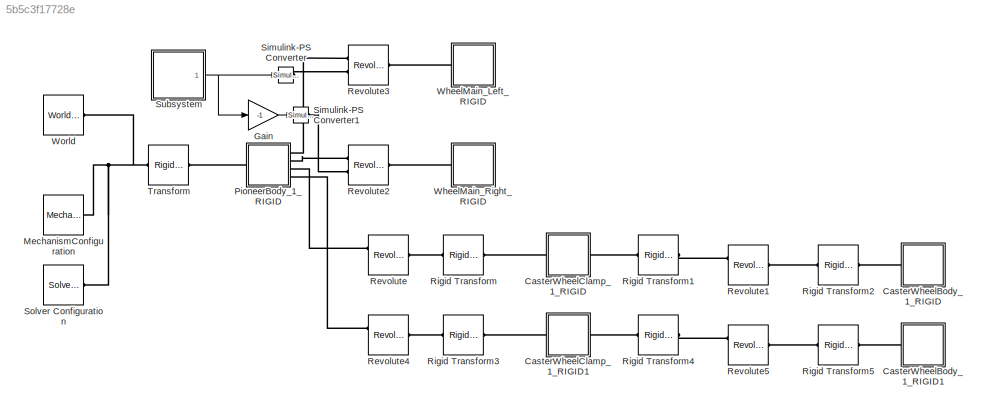
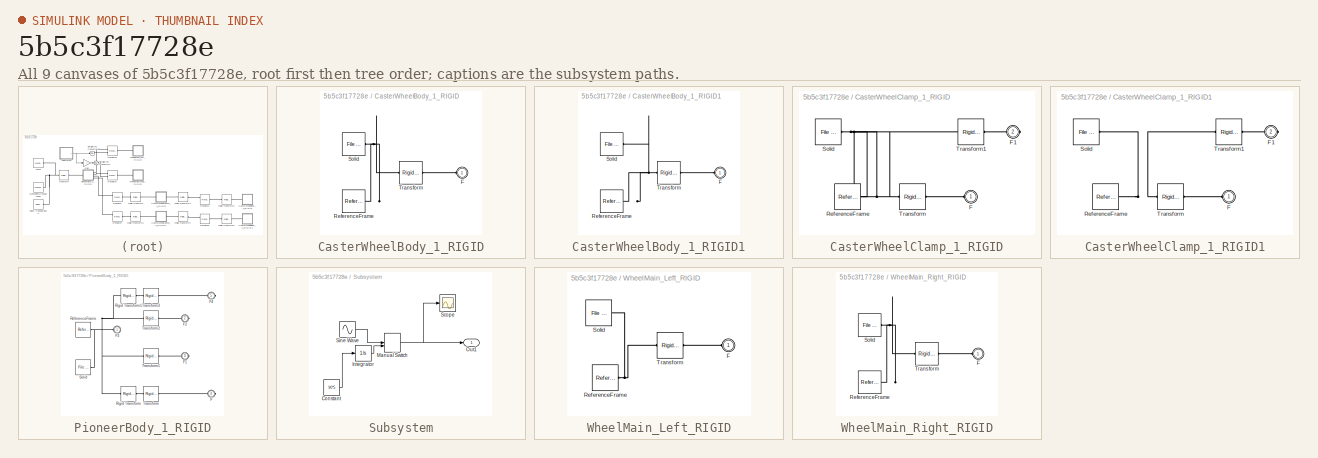
[diagram: thumbnail index - all 9 canvases of the model, root first then tree order]
MODEL slx_5b5c3f17728e
KIND model
CONFIG AbsTol = auto
CONFIG EnableMultiTasking = on
CONFIG FixedStep = auto
CONFIG MaxStep = auto
CONFIG MinStep = auto
CONFIG RelTol = 1e-3
CONFIG SampleTimeConstraint = Unconstrained
CONFIG Solver = ode45
CONFIG SolverName = ode45
CONFIG StartTime = 0.0
CONFIG StopTime = inf
BLOCK [SubSystem] CasterWheelBody_1_RIGID
  Ports = [0, 0, 0, 0, 0, 1]
  RequestExecContextInheritance = off
BLOCK [PMIOPort] CasterWheelBody_1_RIGID/F
  Side = Left
BLOCK [Reference] CasterWheelBody_1_RIGID/ReferenceFrame  REF=sm_lib/Frames and
Transforms/Reference
Frame
  Ports = [0, 0, 0, 0, 0, 0, 1]
  SourceBlock = sm_lib/Frames and\nTransforms/Reference\nFrame
  SourceProductBaseCode = MS
  SourceType = Reference\nFrame
BLOCK [Reference] CasterWheelBody_1_RIGID/Solid  REF=sm_lib/Body Elements/File Solid
  Ports = [0, 0, 0, 0, 0, 0, 1]
  SourceBlock = sm_lib/Body Elements/File Solid
  SourceProductBaseCode = MS
  SourceType = File Solid
BLOCK [Reference] CasterWheelBody_1_RIGID/Transform  REF=sm_lib/Frames and
Transforms/Rigid
Transform
  Ports = [0, 0, 0, 0, 0, 1, 1]
  SourceBlock = sm_lib/Frames and\nTransforms/Rigid\nTransform
  SourceProductBaseCode = MS
  SourceType = Rigid\nTransform
BLOCK [SubSystem] CasterWheelBody_1_RIGID1
  Ports = [0, 0, 0, 0, 0, 1]
  RequestExecContextInheritance = off
BLOCK [PMIOPort] CasterWheelBody_1_RIGID1/F
  Side = Left
BLOCK [Reference] CasterWheelBody_1_RIGID1/ReferenceFrame  REF=sm_lib/Frames and
Transforms/Reference
Frame
  Ports = [0, 0, 0, 0, 0, 0, 1]
  SourceBlock = sm_lib/Frames and\nTransforms/Reference\nFrame
  SourceProductBaseCode = MS
  SourceType = Reference\nFrame
BLOCK [Reference] CasterWheelBody_1_RIGID1/Solid  REF=sm_lib/Body Elements/File Solid
  Ports = [0, 0, 0, 0, 0, 0, 1]
  SourceBlock = sm_lib/Body Elements/File Solid
  SourceProductBaseCode = MS
  SourceType = File Solid
BLOCK [Reference] CasterWheelBody_1_RIGID1/Transform  REF=sm_lib/Frames and
Transforms/Rigid
Transform
  Ports = [0, 0, 0, 0, 0, 1, 1]
  SourceBlock = sm_lib/Frames and\nTransforms/Rigid\nTransform
  SourceProductBaseCode = MS
  SourceType = Rigid\nTransform
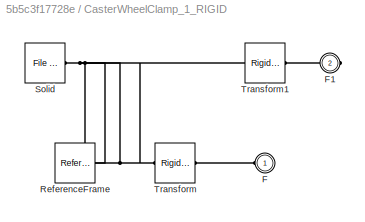
BLOCK [SubSystem] CasterWheelClamp_1_RIGID
  Ports = [0, 0, 0, 0, 0, 1, 1]
  RequestExecContextInheritance = off
BLOCK [PMIOPort] CasterWheelClamp_1_RIGID/F
  Side = Left
BLOCK [PMIOPort] CasterWheelClamp_1_RIGID/F1
  Port = 2
  Side = Right
BLOCK [Reference] CasterWheelClamp_1_RIGID/ReferenceFrame  REF=sm_lib/Frames and
Transforms/Reference
Frame
  Ports = [0, 0, 0, 0, 0, 0, 1]
  SourceBlock = sm_lib/Frames and\nTransforms/Reference\nFrame
  SourceProductBaseCode = MS
  SourceType = Reference\nFrame
BLOCK [Reference] CasterWheelClamp_1_RIGID/Solid  REF=sm_lib/Body Elements/File Solid
  Ports = [0, 0, 0, 0, 0, 0, 1]
  SourceBlock = sm_lib/Body Elements/File Solid
  SourceProductBaseCode = MS
  SourceType = File Solid
BLOCK [Reference] CasterWheelClamp_1_RIGID/Transform  REF=sm_lib/Frames and
Transforms/Rigid
Transform
  Ports = [0, 0, 0, 0, 0, 1, 1]
  SourceBlock = sm_lib/Frames and\nTransforms/Rigid\nTransform
  SourceProductBaseCode = MS
  SourceType = Rigid\nTransform
BLOCK [Reference] CasterWheelClamp_1_RIGID/Transform1  REF=sm_lib/Frames and
Transforms/Rigid
Transform
  Ports = [0, 0, 0, 0, 0, 1, 1]
  SourceBlock = sm_lib/Frames and\nTransforms/Rigid\nTransform
  SourceProductBaseCode = MS
  SourceType = Rigid\nTransform
BLOCK [SubSystem] CasterWheelClamp_1_RIGID1
  Ports = [0, 0, 0, 0, 0, 1, 1]
  RequestExecContextInheritance = off
BLOCK [PMIOPort] CasterWheelClamp_1_RIGID1/F
  Side = Left
BLOCK [PMIOPort] CasterWheelClamp_1_RIGID1/F1
  Port = 2
  Side = Right
BLOCK [Reference] CasterWheelClamp_1_RIGID1/ReferenceFrame  REF=sm_lib/Frames and
Transforms/Reference
Frame
  Ports = [0, 0, 0, 0, 0, 0, 1]
  SourceBlock = sm_lib/Frames and\nTransforms/Reference\nFrame
  SourceProductBaseCode = MS
  SourceType = Reference\nFrame
BLOCK [Reference] CasterWheelClamp_1_RIGID1/Solid  REF=sm_lib/Body Elements/File Solid
  Ports = [0, 0, 0, 0, 0, 0, 1]
  SourceBlock = sm_lib/Body Elements/File Solid
  SourceProductBaseCode = MS
  SourceType = File Solid
BLOCK [Reference] CasterWheelClamp_1_RIGID1/Transform  REF=sm_lib/Frames and
Transforms/Rigid
Transform
  Ports = [0, 0, 0, 0, 0, 1, 1]
  SourceBlock = sm_lib/Frames and\nTransforms/Rigid\nTransform
  SourceProductBaseCode = MS
  SourceType = Rigid\nTransform
BLOCK [Reference] CasterWheelClamp_1_RIGID1/Transform1  REF=sm_lib/Frames and
Transforms/Rigid
Transform
  Ports = [0, 0, 0, 0, 0, 1, 1]
  SourceBlock = sm_lib/Frames and\nTransforms/Rigid\nTransform
  SourceProductBaseCode = MS
  SourceType = Rigid\nTransform
BLOCK [Gain] Gain
  Gain = -1
BLOCK [Reference] MechanismConfiguration  REF=sm_lib/Utilities/Mechanism
Configuration
  Ports = [0, 0, 0, 0, 0, 0, 1]
  SourceBlock = sm_lib/Utilities/Mechanism\nConfiguration
  SourceProductBaseCode = MS
  SourceType = Mechanism\nConfiguration
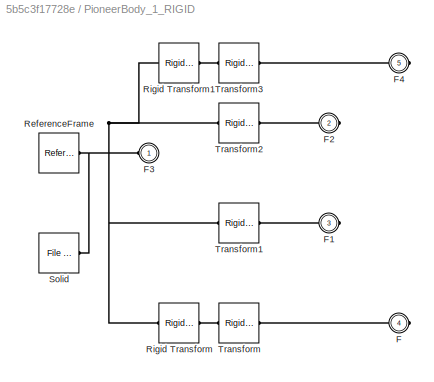
BLOCK [SubSystem] PioneerBody_1_RIGID
  Ports = [0, 0, 0, 0, 0, 1, 4]
  RequestExecContextInheritance = off
BLOCK [PMIOPort] PioneerBody_1_RIGID/F
  Port = 4
  Side = Right
BLOCK [PMIOPort] PioneerBody_1_RIGID/F1
  Port = 3
  Side = Right
BLOCK [PMIOPort] PioneerBody_1_RIGID/F2
  Port = 2
  Side = Right
BLOCK [PMIOPort] PioneerBody_1_RIGID/F3
  Side = Left
BLOCK [PMIOPort] PioneerBody_1_RIGID/F4
  Port = 5
  Side = Right
BLOCK [Reference] PioneerBody_1_RIGID/ReferenceFrame  REF=sm_lib/Frames and
Transforms/Reference
Frame
  Ports = [0, 0, 0, 0, 0, 0, 1]
  SourceBlock = sm_lib/Frames and\nTransforms/Reference\nFrame
  SourceProductBaseCode = MS
  SourceType = Reference\nFrame
BLOCK [Reference] PioneerBody_1_RIGID/Rigid Transform  REF=sm_lib/Frames and
Transforms/Rigid
Transform
  Ports = [0, 0, 0, 0, 0, 1, 1]
  SourceBlock = sm_lib/Frames and\nTransforms/Rigid\nTransform
  SourceProductBaseCode = MS
  SourceType = Rigid\nTransform
BLOCK [Reference] PioneerBody_1_RIGID/Rigid Transform1  REF=sm_lib/Frames and
Transforms/Rigid
Transform
  Ports = [0, 0, 0, 0, 0, 1, 1]
  SourceBlock = sm_lib/Frames and\nTransforms/Rigid\nTransform
  SourceProductBaseCode = MS
  SourceType = Rigid\nTransform
BLOCK [Reference] PioneerBody_1_RIGID/Solid  REF=sm_lib/Body Elements/File Solid
  Ports = [0, 0, 0, 0, 0, 0, 1]
  SourceBlock = sm_lib/Body Elements/File Solid
  SourceProductBaseCode = MS
  SourceType = File Solid
BLOCK [Reference] PioneerBody_1_RIGID/Transform  REF=sm_lib/Frames and
Transforms/Rigid
Transform
  Ports = [0, 0, 0, 0, 0, 1, 1]
  SourceBlock = sm_lib/Frames and\nTransforms/Rigid\nTransform
  SourceProductBaseCode = MS
  SourceType = Rigid\nTransform
BLOCK [Reference] PioneerBody_1_RIGID/Transform1  REF=sm_lib/Frames and
Transforms/Rigid
Transform
  Ports = [0, 0, 0, 0, 0, 1, 1]
  SourceBlock = sm_lib/Frames and\nTransforms/Rigid\nTransform
  SourceProductBaseCode = MS
  SourceType = Rigid\nTransform
BLOCK [Reference] PioneerBody_1_RIGID/Transform2  REF=sm_lib/Frames and
Transforms/Rigid
Transform
  Ports = [0, 0, 0, 0, 0, 1, 1]
  SourceBlock = sm_lib/Frames and\nTransforms/Rigid\nTransform
  SourceProductBaseCode = MS
  SourceType = Rigid\nTransform
BLOCK [Reference] PioneerBody_1_RIGID/Transform3  REF=sm_lib/Frames and
Transforms/Rigid
Transform
  Ports = [0, 0, 0, 0, 0, 1, 1]
  SourceBlock = sm_lib/Frames and\nTransforms/Rigid\nTransform
  SourceProductBaseCode = MS
  SourceType = Rigid\nTransform
BLOCK [Reference] Revolute  REF=sm_lib/Joints/Revolute Joint
  Ports = [0, 0, 0, 0, 0, 2, 1]
  SourceBlock = sm_lib/Joints/Revolute Joint
  SourceProductBaseCode = MS
  SourceType = Revolute Joint
BLOCK [Reference] Revolute1  REF=sm_lib/Joints/Revolute Joint
  Ports = [0, 0, 0, 0, 0, 2, 1]
  SourceBlock = sm_lib/Joints/Revolute Joint
  SourceProductBaseCode = MS
  SourceType = Revolute Joint
BLOCK [Reference] Revolute2  REF=sm_lib/Joints/Revolute Joint
  Ports = [0, 0, 0, 0, 0, 2, 1]
  SourceBlock = sm_lib/Joints/Revolute Joint
  SourceProductBaseCode = MS
  SourceType = Revolute Joint
BLOCK [Reference] Revolute3  REF=sm_lib/Joints/Revolute Joint
  Ports = [0, 0, 0, 0, 0, 2, 1]
  SourceBlock = sm_lib/Joints/Revolute Joint
  SourceProductBaseCode = MS
  SourceType = Revolute Joint
BLOCK [Reference] Revolute4  REF=sm_lib/Joints/Revolute Joint
  Ports = [0, 0, 0, 0, 0, 2, 1]
  SourceBlock = sm_lib/Joints/Revolute Joint
  SourceProductBaseCode = MS
  SourceType = Revolute Joint
BLOCK [Reference] Revolute5  REF=sm_lib/Joints/Revolute Joint
  Ports = [0, 0, 0, 0, 0, 2, 1]
  SourceBlock = sm_lib/Joints/Revolute Joint
  SourceProductBaseCode = MS
  SourceType = Revolute Joint
BLOCK [Reference] Rigid Transform  REF=sm_lib/Frames and
Transforms/Rigid
Transform
  Ports = [0, 0, 0, 0, 0, 1, 1]
  SourceBlock = sm_lib/Frames and\nTransforms/Rigid\nTransform
  SourceProductBaseCode = MS
  SourceType = Rigid\nTransform
BLOCK [Reference] Rigid Transform1  REF=sm_lib/Frames and
Transforms/Rigid
Transform
  Ports = [0, 0, 0, 0, 0, 1, 1]
  SourceBlock = sm_lib/Frames and\nTransforms/Rigid\nTransform
  SourceProductBaseCode = MS
  SourceType = Rigid\nTransform
BLOCK [Reference] Rigid Transform2  REF=sm_lib/Frames and
Transforms/Rigid
Transform
  Ports = [0, 0, 0, 0, 0, 1, 1]
  SourceBlock = sm_lib/Frames and\nTransforms/Rigid\nTransform
  SourceProductBaseCode = MS
  SourceType = Rigid\nTransform
BLOCK [Reference] Rigid Transform3  REF=sm_lib/Frames and
Transforms/Rigid
Transform
  Ports = [0, 0, 0, 0, 0, 1, 1]
  SourceBlock = sm_lib/Frames and\nTransforms/Rigid\nTransform
  SourceProductBaseCode = MS
  SourceType = Rigid\nTransform
BLOCK [Reference] Rigid Transform4  REF=sm_lib/Frames and
Transforms/Rigid
Transform
  Ports = [0, 0, 0, 0, 0, 1, 1]
  SourceBlock = sm_lib/Frames and\nTransforms/Rigid\nTransform
  SourceProductBaseCode = MS
  SourceType = Rigid\nTransform
BLOCK [Reference] Rigid Transform5  REF=sm_lib/Frames and
Transforms/Rigid
Transform
  Ports = [0, 0, 0, 0, 0, 1, 1]
  SourceBlock = sm_lib/Frames and\nTransforms/Rigid\nTransform
  SourceProductBaseCode = MS
  SourceType = Rigid\nTransform
BLOCK [Reference] Simulink-PS Converter  REF=nesl_utility/Simulink-PS
Converter
  Ports = [1, 0, 0, 0, 0, 0, 1]
  SourceBlock = nesl_utility/Simulink-PS\nConverter
  SourceProductBaseCode = SS
  SourceType = Simulink-PS\nConverter
BLOCK [Reference] Simulink-PS Converter1  REF=nesl_utility/Simulink-PS
Converter
  Ports = [1, 0, 0, 0, 0, 0, 1]
  SourceBlock = nesl_utility/Simulink-PS\nConverter
  SourceProductBaseCode = SS
  SourceType = Simulink-PS\nConverter
BLOCK [Reference] Solver Configuration  REF=nesl_utility/Solver
Configuration
  Ports = [0, 0, 0, 0, 0, 0, 1]
  SourceBlock = nesl_utility/Solver\nConfiguration
  SourceProductBaseCode = SS
  SourceType = Solver\nConfiguration
BLOCK [SubSystem] Subsystem
  Ports = [0, 1]
  RequestExecContextInheritance = off
BLOCK [Constant] Subsystem/Constant
  Value = 90*5
BLOCK [Integrator] Subsystem/Integrator
  Ports = [1, 1]
BLOCK [ManualSwitch] Subsystem/Manual Switch
BLOCK [Outport] Subsystem/Out1
BLOCK [Scope] Subsystem/Scope
  Floating = off
  NumInputPorts = 1
  Ports = [1]
  ScopeSpecificationString = Simulink.scopes.TimeScopeBlockCfg('CurrentConfiguration', extmgr.ConfigurationSet(extmgr.Configuration('Core','General UI',true),extmgr.Configuration('Core','Source UI',true),extmgr.Configuration('Sources','WiredSimulink',true),extmgr.Configuration('Visuals','Time Domain',true,'SerializedDisplays',{struct('MinYLimReal','-448.51807','MaxYLimReal','436.66371','YLabelReal','','MinYLimMag',' 0.00000',...<+1459ch>
BLOCK [Sin] Subsystem/Sine Wave
  Amplitude = 360
  Ports = [0, 1]
  SampleTime = 0
BLOCK [Reference] Transform  REF=sm_lib/Frames and
Transforms/Rigid
Transform
  Ports = [0, 0, 0, 0, 0, 1, 1]
  SourceBlock = sm_lib/Frames and\nTransforms/Rigid\nTransform
  SourceProductBaseCode = MS
  SourceType = Rigid\nTransform
BLOCK [SubSystem] WheelMain_Left_RIGID
  Ports = [0, 0, 0, 0, 0, 1]
  RequestExecContextInheritance = off
BLOCK [PMIOPort] WheelMain_Left_RIGID/F
  Side = Left
BLOCK [Reference] WheelMain_Left_RIGID/ReferenceFrame  REF=sm_lib/Frames and
Transforms/Reference
Frame
  Ports = [0, 0, 0, 0, 0, 0, 1]
  SourceBlock = sm_lib/Frames and\nTransforms/Reference\nFrame
  SourceProductBaseCode = MS
  SourceType = Reference\nFrame
BLOCK [Reference] WheelMain_Left_RIGID/Solid  REF=sm_lib/Body Elements/File Solid
  Ports = [0, 0, 0, 0, 0, 0, 1]
  SourceBlock = sm_lib/Body Elements/File Solid
  SourceProductBaseCode = MS
  SourceType = File Solid
BLOCK [Reference] WheelMain_Left_RIGID/Transform  REF=sm_lib/Frames and
Transforms/Rigid
Transform
  Ports = [0, 0, 0, 0, 0, 1, 1]
  SourceBlock = sm_lib/Frames and\nTransforms/Rigid\nTransform
  SourceProductBaseCode = MS
  SourceType = Rigid\nTransform
BLOCK [SubSystem] WheelMain_Right_RIGID
  Ports = [0, 0, 0, 0, 0, 1]
  RequestExecContextInheritance = off
BLOCK [PMIOPort] WheelMain_Right_RIGID/F
  Side = Left
BLOCK [Reference] WheelMain_Right_RIGID/ReferenceFrame  REF=sm_lib/Frames and
Transforms/Reference
Frame
  Ports = [0, 0, 0, 0, 0, 0, 1]
  SourceBlock = sm_lib/Frames and\nTransforms/Reference\nFrame
  SourceProductBaseCode = MS
  SourceType = Reference\nFrame
BLOCK [Reference] WheelMain_Right_RIGID/Solid  REF=sm_lib/Body Elements/File Solid
  Ports = [0, 0, 0, 0, 0, 0, 1]
  SourceBlock = sm_lib/Body Elements/File Solid
  SourceProductBaseCode = MS
  SourceType = File Solid
BLOCK [Reference] WheelMain_Right_RIGID/Transform  REF=sm_lib/Frames and
Transforms/Rigid
Transform
  Ports = [0, 0, 0, 0, 0, 1, 1]
  SourceBlock = sm_lib/Frames and\nTransforms/Rigid\nTransform
  SourceProductBaseCode = MS
  SourceType = Rigid\nTransform
BLOCK [Reference] World  REF=sm_lib/Frames and
Transforms/World Frame
  Ports = [0, 0, 0, 0, 0, 0, 1]
  SourceBlock = sm_lib/Frames and\nTransforms/World Frame
  SourceProductBaseCode = MS
  SourceType = World Frame
LINE Gain:1 -> Simulink-PS Converter1:1
LINE Subsystem/Constant:1 -> Subsystem/Integrator:1
LINE Subsystem/Integrator:1 -> Subsystem/Manual Switch:2
NET Subsystem/Manual Switch:1 -> Subsystem/Out1:1, Subsystem/Scope:1
LINE Subsystem/Sine Wave:1 -> Subsystem/Manual Switch:1
NET Subsystem:1 -> Gain:1, Simulink-PS Converter:1
PLINE CasterWheelBody_1_RIGID/F:RConn1 -- CasterWheelBody_1_RIGID/Transform:RConn1
PNET net1: CasterWheelBody_1_RIGID/ReferenceFrame:RConn1 -- CasterWheelBody_1_RIGID/Solid:RConn1 -- CasterWheelBody_1_RIGID/Transform:LConn1
PLINE CasterWheelBody_1_RIGID1/F:RConn1 -- CasterWheelBody_1_RIGID1/Transform:RConn1
PNET net2: CasterWheelBody_1_RIGID1/ReferenceFrame:RConn1 -- CasterWheelBody_1_RIGID1/Solid:RConn1 -- CasterWheelBody_1_RIGID1/Transform:LConn1
PLINE CasterWheelBody_1_RIGID1:LConn1 -- Rigid Transform5:RConn1
PLINE CasterWheelBody_1_RIGID:LConn1 -- Rigid Transform2:RConn1
PLINE CasterWheelClamp_1_RIGID/F1:RConn1 -- CasterWheelClamp_1_RIGID/Transform1:RConn1
PLINE CasterWheelClamp_1_RIGID/F:RConn1 -- CasterWheelClamp_1_RIGID/Transform:RConn1
PNET net3: CasterWheelClamp_1_RIGID/ReferenceFrame:RConn1 -- CasterWheelClamp_1_RIGID/Solid:RConn1 -- CasterWheelClamp_1_RIGID/Transform1:LConn1 -- CasterWheelClamp_1_RIGID/Transform:LConn1
PLINE CasterWheelClamp_1_RIGID1/F1:RConn1 -- CasterWheelClamp_1_RIGID1/Transform1:RConn1
PLINE CasterWheelClamp_1_RIGID1/F:RConn1 -- CasterWheelClamp_1_RIGID1/Transform:RConn1
PNET net4: CasterWheelClamp_1_RIGID1/ReferenceFrame:RConn1 -- CasterWheelClamp_1_RIGID1/Solid:RConn1 -- CasterWheelClamp_1_RIGID1/Transform1:LConn1 -- CasterWheelClamp_1_RIGID1/Transform:LConn1
PLINE CasterWheelClamp_1_RIGID1:LConn1 -- Rigid Transform3:RConn1
PLINE CasterWheelClamp_1_RIGID1:RConn1 -- Rigid Transform4:LConn1
PLINE CasterWheelClamp_1_RIGID:LConn1 -- Rigid Transform:RConn1
PLINE CasterWheelClamp_1_RIGID:RConn1 -- Rigid Transform1:LConn1
PNET net5: MechanismConfiguration:RConn1 -- Solver Configuration:RConn1 -- Transform:LConn1 -- World:RConn1
PLINE PioneerBody_1_RIGID/F1:RConn1 -- PioneerBody_1_RIGID/Transform1:RConn1
PLINE PioneerBody_1_RIGID/F2:RConn1 -- PioneerBody_1_RIGID/Transform2:RConn1
PNET net6: PioneerBody_1_RIGID/F3:RConn1 -- PioneerBody_1_RIGID/ReferenceFrame:RConn1 -- PioneerBody_1_RIGID/Rigid Transform1:LConn1 -- PioneerBody_1_RIGID/Rigid Transform:LConn1 -- PioneerBody_1_RIGID/Solid:RConn1 -- PioneerBody_1_RIGID/Transform1:LConn1 -- PioneerBody_1_RIGID/Transform2:LConn1
PLINE PioneerBody_1_RIGID/F4:RConn1 -- PioneerBody_1_RIGID/Transform3:RConn1
PLINE PioneerBody_1_RIGID/F:RConn1 -- PioneerBody_1_RIGID/Transform:RConn1
PLINE PioneerBody_1_RIGID/Rigid Transform1:RConn1 -- PioneerBody_1_RIGID/Transform3:LConn1
PLINE PioneerBody_1_RIGID/Rigid Transform:RConn1 -- PioneerBody_1_RIGID/Transform:LConn1
PLINE PioneerBody_1_RIGID:LConn1 -- Transform:RConn1
PLINE PioneerBody_1_RIGID:RConn1 -- Revolute3:LConn1
PLINE PioneerBody_1_RIGID:RConn2 -- Revolute2:LConn1
PLINE PioneerBody_1_RIGID:RConn3 -- Revolute:LConn1
PLINE PioneerBody_1_RIGID:RConn4 -- Revolute4:LConn1
PLINE Revolute1:LConn1 -- Rigid Transform1:RConn1
PLINE Revolute1:RConn1 -- Rigid Transform2:LConn1
PLINE Revolute2:LConn2 -- Simulink-PS Converter1:RConn1
PLINE Revolute2:RConn1 -- WheelMain_Right_RIGID:LConn1
PLINE Revolute3:LConn2 -- Simulink-PS Converter:RConn1
PLINE Revolute3:RConn1 -- WheelMain_Left_RIGID:LConn1
PLINE Revolute4:RConn1 -- Rigid Transform3:LConn1
PLINE Revolute5:LConn1 -- Rigid Transform4:RConn1
PLINE Revolute5:RConn1 -- Rigid Transform5:LConn1
PLINE Revolute:RConn1 -- Rigid Transform:LConn1
PLINE WheelMain_Left_RIGID/F:RConn1 -- WheelMain_Left_RIGID/Transform:RConn1
PNET net7: WheelMain_Left_RIGID/ReferenceFrame:RConn1 -- WheelMain_Left_RIGID/Solid:RConn1 -- WheelMain_Left_RIGID/Transform:LConn1
PLINE WheelMain_Right_RIGID/F:RConn1 -- WheelMain_Right_RIGID/Transform:RConn1
PNET net8: WheelMain_Right_RIGID/ReferenceFrame:RConn1 -- WheelMain_Right_RIGID/Solid:RConn1 -- WheelMain_Right_RIGID/Transform:LConn1
note: NET lines group one-source signal fan-out (src -> all destinations, sorted); 1:1 wires keep LINE; PNET lines group multi-terminal physical nets as a canonical sorted terminal list (undirected conserving connections); 2-terminal nets keep the pairwise PLINE form
